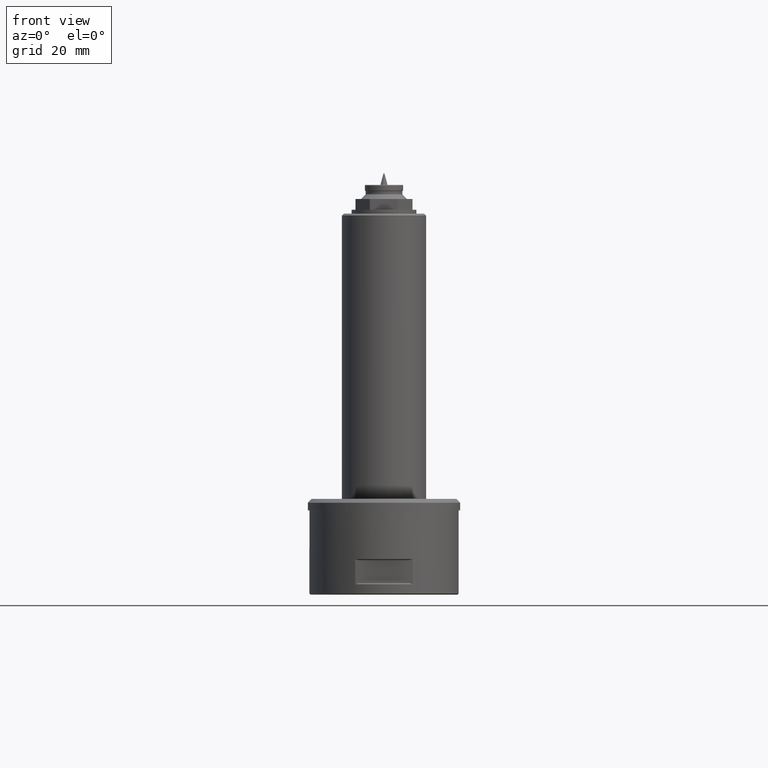
[diagram: clean part render]
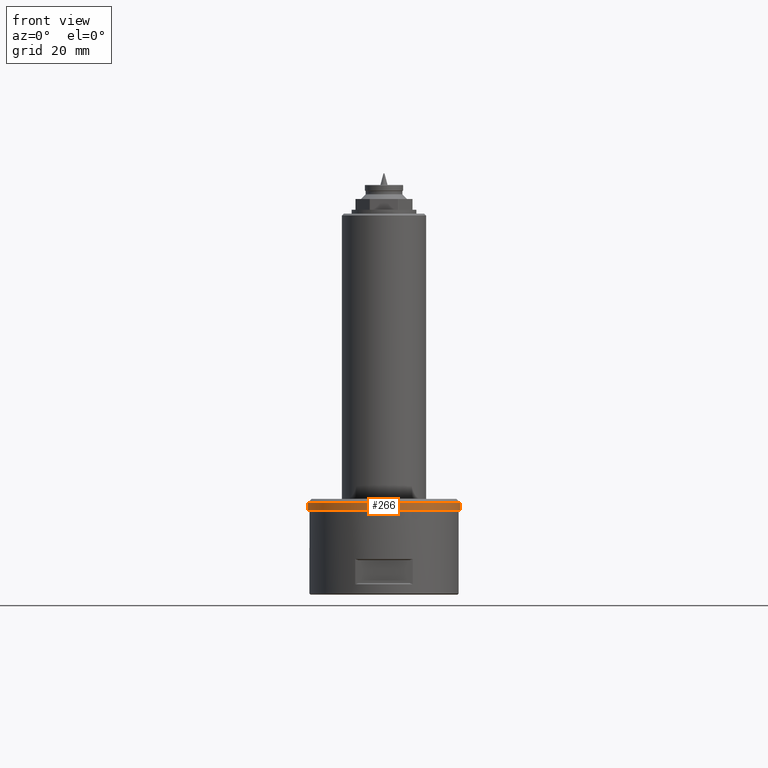
[diagram: same view with one face highlighted and labeled with its STEP entity id]
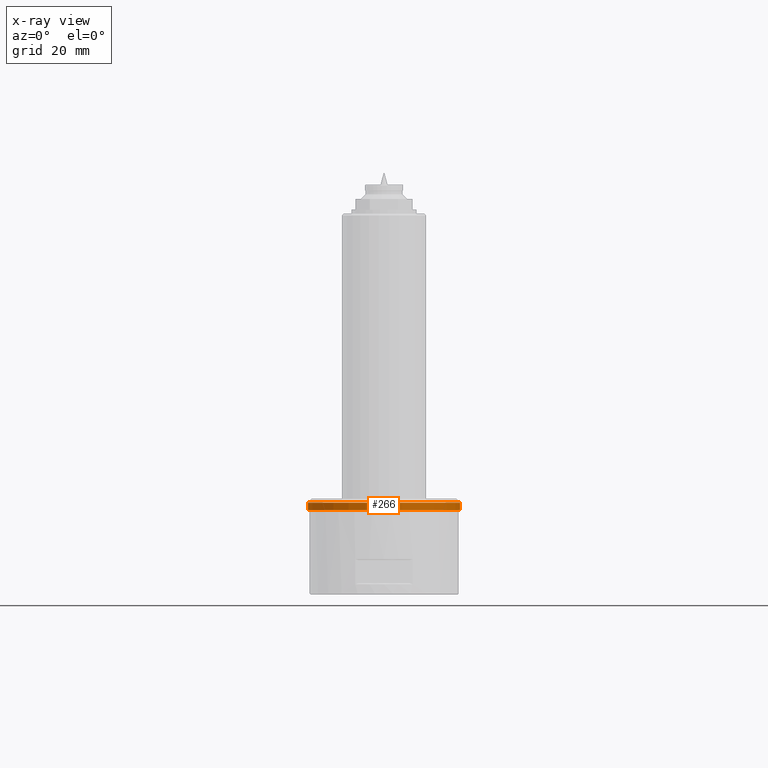
[diagram: x-ray of the same camera — body ghosted, the highlighted face saturated]
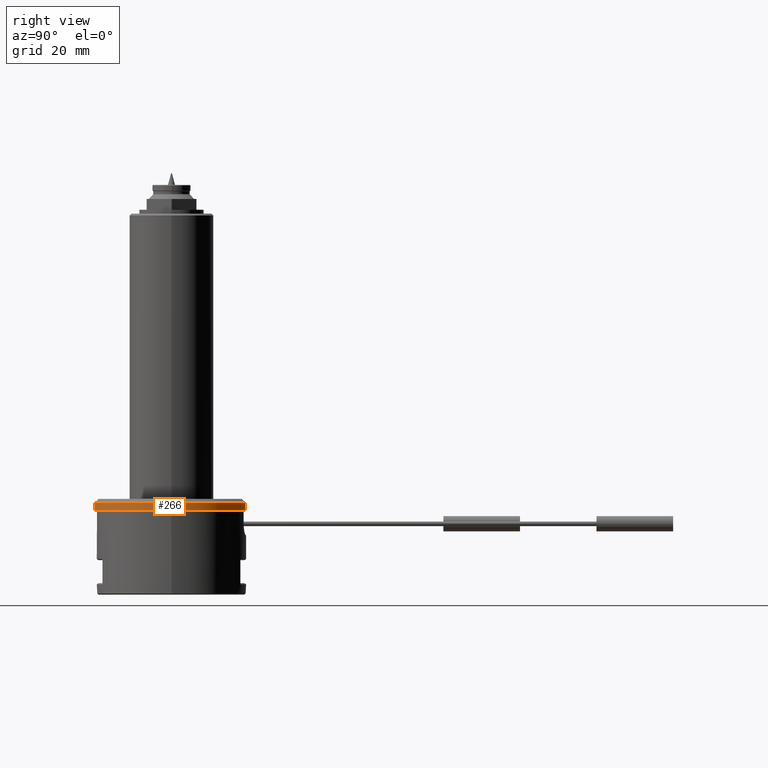
[diagram: same view with one face highlighted and labeled with its STEP entity id]
A machine part, front view. The second image highlights one B-rep face of the part: STEP entity #266.
The next image is the same camera in x-ray: the body ghosted, the highlighted face saturated — about 0% of this face is hidden behind the body in this view.
A second angle (right view) of the same face is appended — the face is thin or edge-on in the first view.
In plain terms, the highlighted cylindrical surface (partial cylindrical patch) has radius 20 mm, axis along (0, 0, 1).
Its self-contained STEP definition (entity closure, byte-faithful):
#48=CYLINDRICAL_SURFACE('',#1223,20.);
#126=LINE('',#2203,#170);
#127=LINE('',#2207,#171);
#170=VECTOR('',#1505,1.);
#171=VECTOR('',#1508,1.);
#203=FACE_OUTER_BOUND('',#478,.T.);
#266=ADVANCED_FACE('',(#203),#48,.T.);
#478=EDGE_LOOP('',(#692,#693,#694,#695));
#692=ORIENTED_EDGE('',*,*,#1037,.T.);
#693=ORIENTED_EDGE('',*,*,#1038,.T.);
#694=ORIENTED_EDGE('',*,*,#1039,.T.);
#695=ORIENTED_EDGE('',*,*,#1034,.T.);
#900=VERTEX_POINT('',#2198);
#901=VERTEX_POINT('',#2199);
#902=VERTEX_POINT('',#2204);
#903=VERTEX_POINT('',#2206);
#1034=EDGE_CURVE('',#900,#901,#1112,.T.);
#1037=EDGE_CURVE('',#901,#902,#126,.T.);
#1038=EDGE_CURVE('',#902,#903,#1113,.T.);
#1039=EDGE_CURVE('',#903,#900,#127,.T.);
#1112=CIRCLE('',#1220,20.);
#1113=CIRCLE('',#1222,20.);
#1220=AXIS2_PLACEMENT_3D('',#2197,#1499,#1500);
#1222=AXIS2_PLACEMENT_3D('',#2205,#1506,#1507);
#1223=AXIS2_PLACEMENT_3D('',#2208,#1509,#1510);
#1499=DIRECTION('',(0.,0.,1.));
#1500=DIRECTION('',(1.,0.,0.));
#1505=DIRECTION('',(0.,0.,1.));
#1506=DIRECTION('',(0.,0.,-1.));
#1507=DIRECTION('',(-1.,0.,0.));
#1508=DIRECTION('',(0.,0.,-1.));
#1509=DIRECTION('',(0.,0.,1.));
#1510=DIRECTION('',(1.,0.,0.));
#2197=CARTESIAN_POINT('',(0.,0.,22.));
#2198=CARTESIAN_POINT('',(-5.,19.3649167310371,22.));
#2199=CARTESIAN_POINT('',(5.,19.3649167310371,22.));
#2203=CARTESIAN_POINT('',(5.,19.3649167310371,0.));
#2204=CARTESIAN_POINT('',(5.,19.3649167310371,24.));
#2205=CARTESIAN_POINT('',(0.,0.,24.));
#2206=CARTESIAN_POINT('',(-5.,19.3649167310371,24.));
#2207=CARTESIAN_POINT('',(-5.,19.3649167310371,0.));
#2208=CARTESIAN_POINT('',(0.,0.,0.));